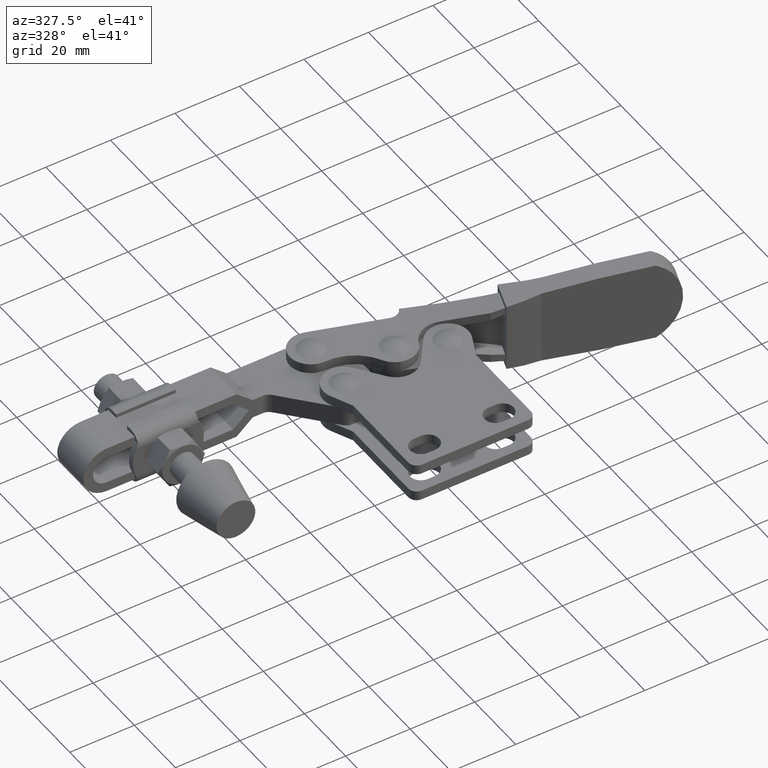
[diagram: clean part render]
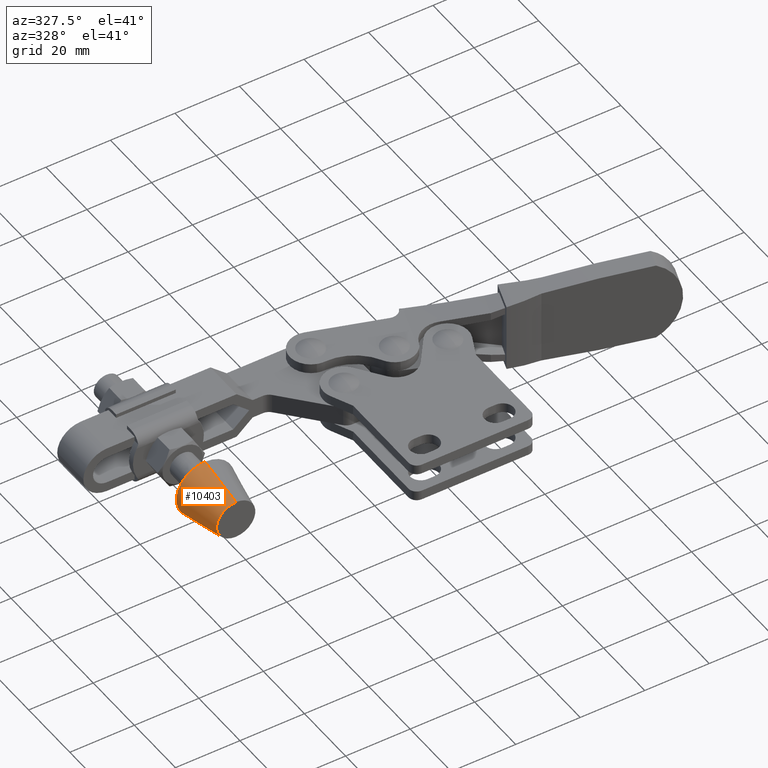
[diagram: same view with one face highlighted and labeled with its STEP entity id]
A machine part, auxiliary view. The second image highlights one B-rep face of the part: STEP entity #10403.
In plain terms, the highlighted conical surface has half-angle 11.31 deg.
Its self-contained STEP definition (entity closure, byte-faithful):
#8 = CARTESIAN_POINT ( 'NONE',  ( -43.00011493732858300, 14.99999707659451800, 0.04997218533018301500 ) ) ;
#19 = LINE ( 'NONE', #8296, #8225 ) ;
#81 = VERTEX_POINT ( 'NONE', #9483 ) ;
#632 = LINE ( 'NONE', #3425, #10525 ) ;
#821 = DIRECTION ( 'NONE',  ( 0.0000000000000000000, 0.0000000000000000000, -1.000000000000000000 ) ) ;
#1238 = DIRECTION ( 'NONE',  ( -0.0000000000000000000, -1.000000000000000000, -0.0000000000000000000 ) ) ;
#1744 = CARTESIAN_POINT ( 'NONE',  ( -43.00011493732858300, 14.99999707659451800, -8.950027814669816500 ) ) ;
#3425 = CARTESIAN_POINT ( 'NONE',  ( -43.00011493732858300, -2.923405481685456900E-006, 6.049972185330183500 ) ) ;
#4186 = DIRECTION ( 'NONE',  ( 2.401729971581267900E-017, 0.9805806756909202200, -0.1961161351381839900 ) ) ;
#4451 = ORIENTED_EDGE ( 'NONE', *, *, #6574, .T. ) ;
#4525 = FACE_OUTER_BOUND ( 'NONE', #4700, .T. ) ;
#4560 = VERTEX_POINT ( 'NONE', #7540 ) ;
#4700 = EDGE_LOOP ( 'NONE', ( #4821, #6456, #4451, #8459 ) ) ;
#4794 = AXIS2_PLACEMENT_3D ( 'NONE', #6328, #5473, #5535 ) ;
#4821 = ORIENTED_EDGE ( 'NONE', *, *, #6029, .F. ) ;
#5160 = DIRECTION ( 'NONE',  ( 0.0000000000000000000, 0.9805806756909202200, 0.1961161351381839900 ) ) ;
#5170 = CIRCLE ( 'NONE', #8102, 6.000000000000000000 ) ;
#5473 = DIRECTION ( 'NONE',  ( 0.0000000000000000000, 1.000000000000000000, 0.0000000000000000000 ) ) ;
#5535 = DIRECTION ( 'NONE',  ( 0.0000000000000000000, 0.0000000000000000000, 1.000000000000000000 ) ) ;
#5673 = CONICAL_SURFACE ( 'NONE', #4794, 6.000000000000000000, 0.1973955598498806600 ) ;
#5719 = DIRECTION ( 'NONE',  ( -0.0000000000000000000, -1.000000000000000000, -0.0000000000000000000 ) ) ;
#5876 = CARTESIAN_POINT ( 'NONE',  ( -43.00011493732858300, -2.923405481685456900E-006, -5.950027814669817300 ) ) ;
#5915 = AXIS2_PLACEMENT_3D ( 'NONE', #8, #5719, #821 ) ;
#6029 = EDGE_CURVE ( 'NONE', #9525, #7134, #19, .T. ) ;
#6147 = CARTESIAN_POINT ( 'NONE',  ( -43.00011493732858300, -2.923405481685456900E-006, 0.04997218533018301500 ) ) ;
#6328 = CARTESIAN_POINT ( 'NONE',  ( -43.00011493732858300, -2.923405481685456900E-006, 0.04997218533018301500 ) ) ;
#6436 = EDGE_CURVE ( 'NONE', #81, #7134, #9391, .T. ) ;
#6456 = ORIENTED_EDGE ( 'NONE', *, *, #10510, .F. ) ;
#6574 = EDGE_CURVE ( 'NONE', #4560, #81, #632, .T. ) ;
#6987 = DIRECTION ( 'NONE',  ( 0.0000000000000000000, 0.0000000000000000000, -1.000000000000000000 ) ) ;
#7134 = VERTEX_POINT ( 'NONE', #1744 ) ;
#7540 = CARTESIAN_POINT ( 'NONE',  ( -43.00011493732858300, -2.923405481685456900E-006, 6.049972185330183500 ) ) ;
#8102 = AXIS2_PLACEMENT_3D ( 'NONE', #6147, #1238, #6987 ) ;
#8225 = VECTOR ( 'NONE', #4186, 1000.000000000000000 ) ;
#8296 = CARTESIAN_POINT ( 'NONE',  ( -43.00011493732858300, -2.923405481685456900E-006, -5.950027814669817300 ) ) ;
#8459 = ORIENTED_EDGE ( 'NONE', *, *, #6436, .T. ) ;
#9391 = CIRCLE ( 'NONE', #5915, 9.000000000000000000 ) ;
#9483 = CARTESIAN_POINT ( 'NONE',  ( -43.00011493732858300, 14.99999707659451800, 9.049972185330181800 ) ) ;
#9525 = VERTEX_POINT ( 'NONE', #5876 ) ;
#10403 = ADVANCED_FACE ( 'NONE', ( #4525 ), #5673, .T. ) ;
#10510 = EDGE_CURVE ( 'NONE', #4560, #9525, #5170, .T. ) ;
#10525 = VECTOR ( 'NONE', #5160, 1000.000000000000000 ) ;